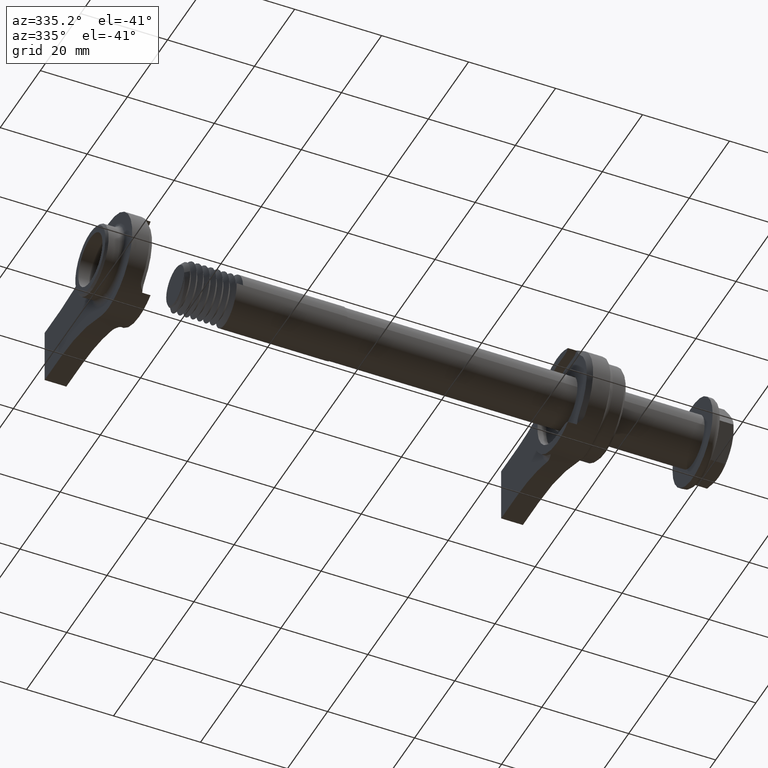
[diagram: clean part render]
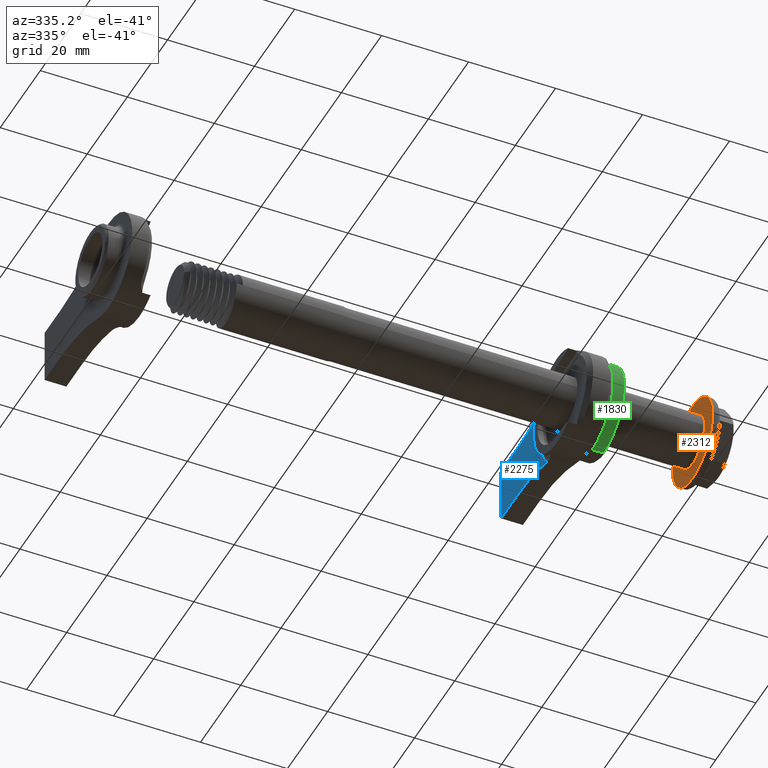
[diagram: same view with three faces highlighted in distinct colors, each labeled with its STEP entity id]
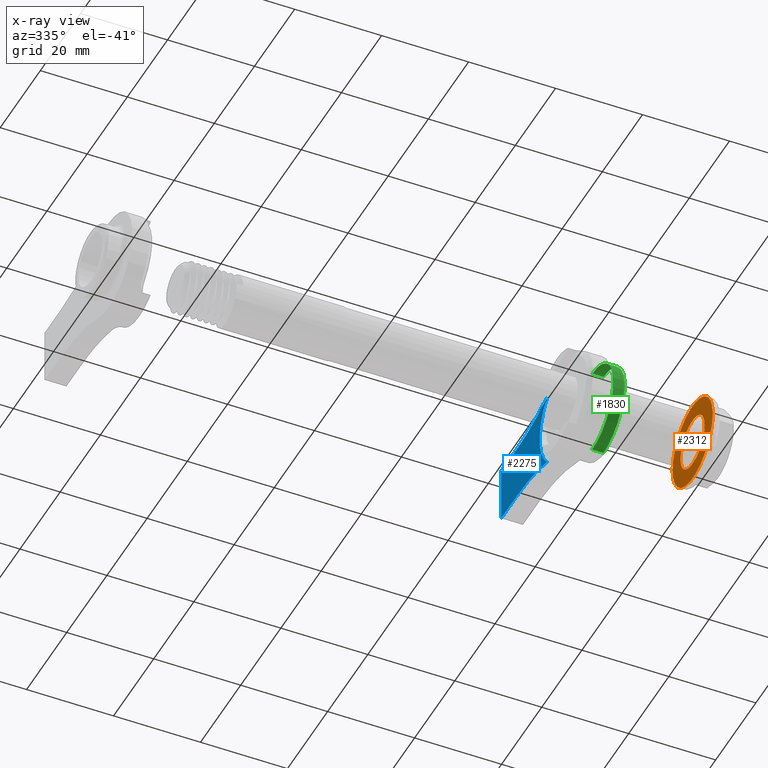
[diagram: x-ray of the same camera — body ghosted, the three highlighted faces saturated]
A machine part, auxiliary view with three faces highlighted in distinct colors.
The next image is the same camera in x-ray (body ghosted, the three faces saturated) — at least one of them is partly hidden behind the body in this view.
Their STEP definitions:

[orange] entity #2312 — the highlighted planar face has unit normal (1, 0, 0).
#145 = PLANE ( 'NONE',  #1639 ) ;
#252 = CARTESIAN_POINT ( 'NONE',  ( 119.0000000000000000, 0.0000000000000000000, 0.0000000000000000000 ) ) ;
#284 = CIRCLE ( 'NONE', #3132, 5.981699999999998200 ) ;
#390 = CARTESIAN_POINT ( 'NONE',  ( 119.0000000000000000, 0.0000000000000000000, 0.0000000000000000000 ) ) ;
#476 = ORIENTED_EDGE ( 'NONE', *, *, #1241, .F. ) ;
#505 = CIRCLE ( 'NONE', #3127, 5.981699999999998200 ) ;
#590 = DIRECTION ( 'NONE',  ( 1.000000000000000000, 0.0000000000000000000, 0.0000000000000000000 ) ) ;
#649 = CARTESIAN_POINT ( 'NONE',  ( 119.0000000000000000, 7.325469758459720600E-016, -5.981699999999998200 ) ) ;
#661 = VERTEX_POINT ( 'NONE', #1756 ) ;
#712 = DIRECTION ( 'NONE',  ( 1.000000000000000000, 0.0000000000000000000, 0.0000000000000000000 ) ) ;
#905 = VERTEX_POINT ( 'NONE', #649 ) ;
#996 = VERTEX_POINT ( 'NONE', #3728 ) ;
#1002 = AXIS2_PLACEMENT_3D ( 'NONE', #1817, #2162, #3500 ) ;
#1065 = EDGE_LOOP ( 'NONE', ( #476, #3975 ) ) ;
#1093 = EDGE_CURVE ( 'NONE', #661, #905, #505, .T. ) ;
#1099 = CIRCLE ( 'NONE', #3098, 10.00000000000000000 ) ;
#1159 = CARTESIAN_POINT ( 'NONE',  ( 119.0000000000000000, 0.0000000000000000000, 0.0000000000000000000 ) ) ;
#1241 = EDGE_CURVE ( 'NONE', #996, #2030, #2632, .T. ) ;
#1610 = FACE_OUTER_BOUND ( 'NONE', #1065, .T. ) ;
#1639 = AXIS2_PLACEMENT_3D ( 'NONE', #390, #2138, #4232 ) ;
#1756 = CARTESIAN_POINT ( 'NONE',  ( 119.0000000000000000, 0.0000000000000000000, 5.981699999999998200 ) ) ;
#1817 = CARTESIAN_POINT ( 'NONE',  ( 119.0000000000000000, 0.0000000000000000000, 0.0000000000000000000 ) ) ;
#1864 = EDGE_LOOP ( 'NONE', ( #3766, #3229 ) ) ;
#2030 = VERTEX_POINT ( 'NONE', #3698 ) ;
#2138 = DIRECTION ( 'NONE',  ( 1.000000000000000000, 0.0000000000000000000, 0.0000000000000000000 ) ) ;
#2162 = DIRECTION ( 'NONE',  ( 1.000000000000000000, 0.0000000000000000000, 0.0000000000000000000 ) ) ;
#2312 = ADVANCED_FACE ( 'NONE', ( #4226, #1610 ), #145, .F. ) ;
#2632 = CIRCLE ( 'NONE', #1002, 10.00000000000000000 ) ;
#2658 = EDGE_CURVE ( 'NONE', #905, #661, #284, .T. ) ;
#2772 = CARTESIAN_POINT ( 'NONE',  ( 119.0000000000000000, 0.0000000000000000000, 0.0000000000000000000 ) ) ;
#2965 = DIRECTION ( 'NONE',  ( 0.0000000000000000000, 0.0000000000000000000, -1.000000000000000000 ) ) ;
#3098 = AXIS2_PLACEMENT_3D ( 'NONE', #252, #590, #2965 ) ;
#3127 = AXIS2_PLACEMENT_3D ( 'NONE', #2772, #712, #3765 ) ;
#3132 = AXIS2_PLACEMENT_3D ( 'NONE', #1159, #3535, #3887 ) ;
#3229 = ORIENTED_EDGE ( 'NONE', *, *, #2658, .T. ) ;
#3391 = EDGE_CURVE ( 'NONE', #2030, #996, #1099, .T. ) ;
#3500 = DIRECTION ( 'NONE',  ( 0.0000000000000000000, 0.0000000000000000000, -1.000000000000000000 ) ) ;
#3535 = DIRECTION ( 'NONE',  ( 1.000000000000000000, 0.0000000000000000000, 0.0000000000000000000 ) ) ;
#3698 = CARTESIAN_POINT ( 'NONE',  ( 119.0000000000000000, 1.224646799147353300E-015, -10.00000000000000000 ) ) ;
#3728 = CARTESIAN_POINT ( 'NONE',  ( 119.0000000000000000, 0.0000000000000000000, 10.00000000000000000 ) ) ;
#3765 = DIRECTION ( 'NONE',  ( 0.0000000000000000000, 0.0000000000000000000, -1.000000000000000000 ) ) ;
#3766 = ORIENTED_EDGE ( 'NONE', *, *, #1093, .T. ) ;
#3887 = DIRECTION ( 'NONE',  ( 0.0000000000000000000, 0.0000000000000000000, -1.000000000000000000 ) ) ;
#3975 = ORIENTED_EDGE ( 'NONE', *, *, #3391, .F. ) ;
#4226 = FACE_BOUND ( 'NONE', #1864, .T. ) ;
#4232 = DIRECTION ( 'NONE',  ( 0.0000000000000000000, 0.0000000000000000000, -1.000000000000000000 ) ) ;

[blue] entity #2275 — the highlighted planar face has unit normal (1, 0, 0).
#37 = DIRECTION ( 'NONE',  ( 0.0000000000000000000, 0.0000000000000000000, -1.000000000000000000 ) ) ;
#46 = VERTEX_POINT ( 'NONE', #2500 ) ;
#206 = VERTEX_POINT ( 'NONE', #4132 ) ;
#435 = EDGE_CURVE ( 'NONE', #3931, #46, #2718, .T. ) ;
#489 = ORIENTED_EDGE ( 'NONE', *, *, #3181, .F. ) ;
#545 = PLANE ( 'NONE',  #709 ) ;
#593 = FACE_OUTER_BOUND ( 'NONE', #2556, .T. ) ;
#709 = AXIS2_PLACEMENT_3D ( 'NONE', #4196, #1876, #3951 ) ;
#729 = VERTEX_POINT ( 'NONE', #3508 ) ;
#812 = CARTESIAN_POINT ( 'NONE',  ( 2.000000000000001800, 24.00000000000000000, -53.42694448765315900 ) ) ;
#943 = CARTESIAN_POINT ( 'NONE',  ( 2.000000000000001800, 24.00000000000000000, -6.500000000000000000 ) ) ;
#1009 = DIRECTION ( 'NONE',  ( -1.000000000000000000, 0.0000000000000000000, 0.0000000000000000000 ) ) ;
#1070 = CARTESIAN_POINT ( 'NONE',  ( 2.000000000000001800, 0.0000000000000000000, 0.0000000000000000000 ) ) ;
#1148 = DIRECTION ( 'NONE',  ( 0.0000000000000000000, 4.435976375405971300E-015, -1.000000000000000000 ) ) ;
#1198 = LINE ( 'NONE', #1852, #2350 ) ;
#1354 = CIRCLE ( 'NONE', #3668, 46.92694448765315200 ) ;
#1370 = ORIENTED_EDGE ( 'NONE', *, *, #1664, .F. ) ;
#1552 = VERTEX_POINT ( 'NONE', #3463 ) ;
#1642 = ORIENTED_EDGE ( 'NONE', *, *, #2687, .F. ) ;
#1646 = DIRECTION ( 'NONE',  ( -0.0000000000000000000, -1.000000000000000000, 0.0000000000000000000 ) ) ;
#1664 = EDGE_CURVE ( 'NONE', #206, #3730, #3167, .T. ) ;
#1681 = ORIENTED_EDGE ( 'NONE', *, *, #3246, .T. ) ;
#1732 = CIRCLE ( 'NONE', #4112, 12.78600000000000000 ) ;
#1852 = CARTESIAN_POINT ( 'NONE',  ( 2.000000000000001800, 24.00000000000000000, 6.500000000000000000 ) ) ;
#1858 = DIRECTION ( 'NONE',  ( 1.000000000000000000, -0.0000000000000000000, -0.0000000000000000000 ) ) ;
#1876 = DIRECTION ( 'NONE',  ( 1.000000000000000000, 0.0000000000000000000, -0.0000000000000000000 ) ) ;
#2017 = CARTESIAN_POINT ( 'NONE',  ( 2.000000000000001800, 24.00000000000000000, -6.500000000000000000 ) ) ;
#2185 = LINE ( 'NONE', #3090, #3774 ) ;
#2228 = EDGE_CURVE ( 'NONE', #1552, #46, #2185, .T. ) ;
#2275 = ADVANCED_FACE ( 'NONE', ( #593 ), #545, .F. ) ;
#2346 = DIRECTION ( 'NONE',  ( 0.0000000000000000000, 1.000000000000000000, 0.0000000000000000000 ) ) ;
#2350 = VECTOR ( 'NONE', #1646, 1000.000000000000000 ) ;
#2500 = CARTESIAN_POINT ( 'NONE',  ( 2.000000000000001800, 31.99999999999999300, -6.499999999999999100 ) ) ;
#2556 = EDGE_LOOP ( 'NONE', ( #489, #1681, #1370, #1642, #3022, #3969 ) ) ;
#2687 = EDGE_CURVE ( 'NONE', #1552, #206, #1198, .T. ) ;
#2718 = LINE ( 'NONE', #2017, #2996 ) ;
#2721 = AXIS2_PLACEMENT_3D ( 'NONE', #3033, #1009, #3392 ) ;
#2996 = VECTOR ( 'NONE', #2346, 1000.000000000000000 ) ;
#3022 = ORIENTED_EDGE ( 'NONE', *, *, #2228, .T. ) ;
#3033 = CARTESIAN_POINT ( 'NONE',  ( 2.000000000000001800, 24.00000000000000000, 53.42694448765315900 ) ) ;
#3078 = CARTESIAN_POINT ( 'NONE',  ( 2.000000000000001800, 9.177650819074546700, 8.902388524611822600 ) ) ;
#3090 = CARTESIAN_POINT ( 'NONE',  ( 2.000000000000001800, 31.99999999999999300, 10.62063350257872700 ) ) ;
#3167 = CIRCLE ( 'NONE', #2721, 46.92694448765315900 ) ;
#3174 = DIRECTION ( 'NONE',  ( -1.000000000000000000, 0.0000000000000000000, 0.0000000000000000000 ) ) ;
#3181 = EDGE_CURVE ( 'NONE', #729, #3931, #1354, .T. ) ;
#3246 = EDGE_CURVE ( 'NONE', #729, #3730, #1732, .T. ) ;
#3392 = DIRECTION ( 'NONE',  ( 0.0000000000000000000, 0.0000000000000000000, -1.000000000000000000 ) ) ;
#3463 = CARTESIAN_POINT ( 'NONE',  ( 2.000000000000001800, 31.99999999999999300, 6.500000000000000000 ) ) ;
#3508 = CARTESIAN_POINT ( 'NONE',  ( 2.000000000000001800, 9.177650819074546700, -8.902388524611822600 ) ) ;
#3668 = AXIS2_PLACEMENT_3D ( 'NONE', #812, #3174, #1148 ) ;
#3730 = VERTEX_POINT ( 'NONE', #3078 ) ;
#3774 = VECTOR ( 'NONE', #37, 1000.000000000000000 ) ;
#3931 = VERTEX_POINT ( 'NONE', #943 ) ;
#3951 = DIRECTION ( 'NONE',  ( -0.0000000000000000000, 0.0000000000000000000, -1.000000000000000000 ) ) ;
#3969 = ORIENTED_EDGE ( 'NONE', *, *, #435, .F. ) ;
#4112 = AXIS2_PLACEMENT_3D ( 'NONE', #1070, #1858, #4246 ) ;
#4132 = CARTESIAN_POINT ( 'NONE',  ( 2.000000000000001800, 24.00000000000000000, 6.499999999999999100 ) ) ;
#4196 = CARTESIAN_POINT ( 'NONE',  ( 2.000000000000001800, 0.0000000000000000000, 0.0000000000000000000 ) ) ;
#4246 = DIRECTION ( 'NONE',  ( 0.0000000000000000000, 0.0000000000000000000, -1.000000000000000000 ) ) ;

[green] entity #1830 — the highlighted cylindrical surface (partial cylindrical patch) has radius 10.5 mm, axis along (-1, -0, -0).
#9 = AXIS2_PLACEMENT_3D ( 'NONE', #4048, #2304, #2322 ) ;
#93 = CYLINDRICAL_SURFACE ( 'NONE', #1529, 10.50000000000000000 ) ;
#280 = EDGE_LOOP ( 'NONE', ( #964, #4379, #3503, #930 ) ) ;
#424 = CARTESIAN_POINT ( 'NONE',  ( 10.75000000000000200, 1.285879139104720800E-015, -10.50000000000000000 ) ) ;
#427 = CARTESIAN_POINT ( 'NONE',  ( 8.142999999999997100, 0.0000000000000000000, 10.50000000000000000 ) ) ;
#519 = VERTEX_POINT ( 'NONE', #1632 ) ;
#930 = ORIENTED_EDGE ( 'NONE', *, *, #3473, .T. ) ;
#964 = ORIENTED_EDGE ( 'NONE', *, *, #3946, .F. ) ;
#999 = CARTESIAN_POINT ( 'NONE',  ( 8.142999999999997100, 0.0000000000000000000, 0.0000000000000000000 ) ) ;
#1048 = CARTESIAN_POINT ( 'NONE',  ( 10.75000000000000200, 0.0000000000000000000, 10.50000000000000000 ) ) ;
#1132 = CARTESIAN_POINT ( 'NONE',  ( 50.19848480983500100, 0.0000000000000000000, 0.0000000000000000000 ) ) ;
#1357 = CIRCLE ( 'NONE', #4284, 10.50000000000000000 ) ;
#1378 = LINE ( 'NONE', #4211, #4098 ) ;
#1529 = AXIS2_PLACEMENT_3D ( 'NONE', #1132, #3526, #2796 ) ;
#1563 = DIRECTION ( 'NONE',  ( -1.000000000000000000, -0.0000000000000000000, -0.0000000000000000000 ) ) ;
#1626 = VECTOR ( 'NONE', #1939, 1000.000000000000000 ) ;
#1632 = CARTESIAN_POINT ( 'NONE',  ( 8.142999999999997100, 1.285879139104720800E-015, -10.50000000000000000 ) ) ;
#1726 = LINE ( 'NONE', #2990, #1626 ) ;
#1820 = VERTEX_POINT ( 'NONE', #1048 ) ;
#1830 = ADVANCED_FACE ( 'NONE', ( #3492 ), #93, .T. ) ;
#1939 = DIRECTION ( 'NONE',  ( -1.000000000000000000, -0.0000000000000000000, -0.0000000000000000000 ) ) ;
#2259 = EDGE_CURVE ( 'NONE', #1820, #4418, #1378, .T. ) ;
#2304 = DIRECTION ( 'NONE',  ( -1.000000000000000000, 0.0000000000000000000, 0.0000000000000000000 ) ) ;
#2322 = DIRECTION ( 'NONE',  ( 0.0000000000000000000, 0.0000000000000000000, -1.000000000000000000 ) ) ;
#2517 = VERTEX_POINT ( 'NONE', #424 ) ;
#2796 = DIRECTION ( 'NONE',  ( 0.0000000000000000000, 0.0000000000000000000, 1.000000000000000000 ) ) ;
#2887 = CIRCLE ( 'NONE', #9, 10.50000000000000000 ) ;
#2947 = EDGE_CURVE ( 'NONE', #2517, #1820, #2887, .T. ) ;
#2990 = CARTESIAN_POINT ( 'NONE',  ( 50.19848480983500100, 1.285879139104720800E-015, -10.50000000000000000 ) ) ;
#3375 = DIRECTION ( 'NONE',  ( 1.000000000000000000, 0.0000000000000000000, -0.0000000000000000000 ) ) ;
#3473 = EDGE_CURVE ( 'NONE', #4418, #519, #1357, .T. ) ;
#3492 = FACE_OUTER_BOUND ( 'NONE', #280, .T. ) ;
#3503 = ORIENTED_EDGE ( 'NONE', *, *, #2259, .T. ) ;
#3526 = DIRECTION ( 'NONE',  ( -1.000000000000000000, -0.0000000000000000000, -0.0000000000000000000 ) ) ;
#3722 = DIRECTION ( 'NONE',  ( 0.0000000000000000000, 0.0000000000000000000, 1.000000000000000000 ) ) ;
#3946 = EDGE_CURVE ( 'NONE', #2517, #519, #1726, .T. ) ;
#4048 = CARTESIAN_POINT ( 'NONE',  ( 10.75000000000000200, 0.0000000000000000000, 0.0000000000000000000 ) ) ;
#4098 = VECTOR ( 'NONE', #1563, 1000.000000000000000 ) ;
#4211 = CARTESIAN_POINT ( 'NONE',  ( 50.19848480983500100, 0.0000000000000000000, 10.50000000000000000 ) ) ;
#4284 = AXIS2_PLACEMENT_3D ( 'NONE', #999, #3375, #3722 ) ;
#4379 = ORIENTED_EDGE ( 'NONE', *, *, #2947, .T. ) ;
#4418 = VERTEX_POINT ( 'NONE', #427 ) ;